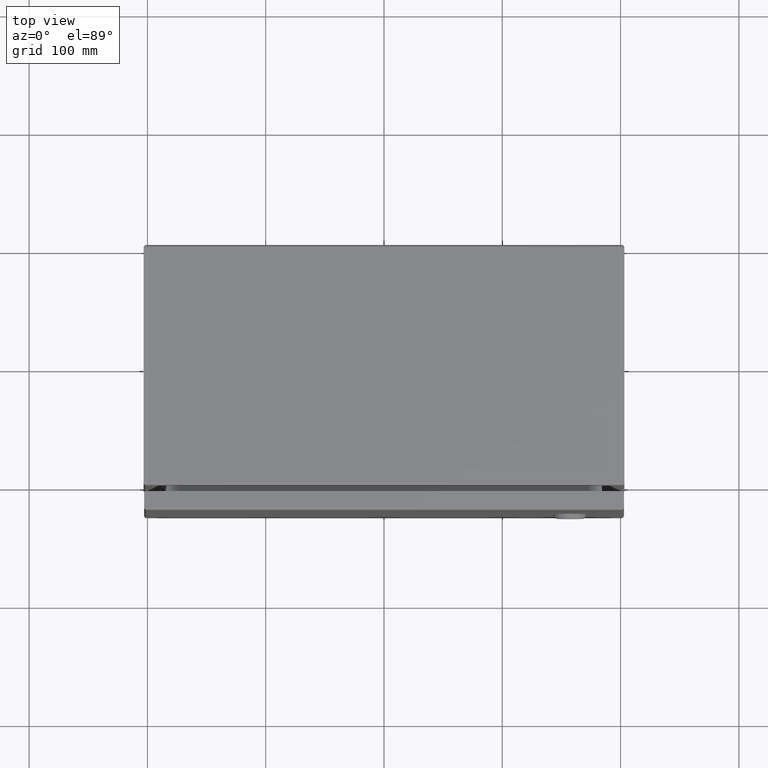
[diagram: clean part render]
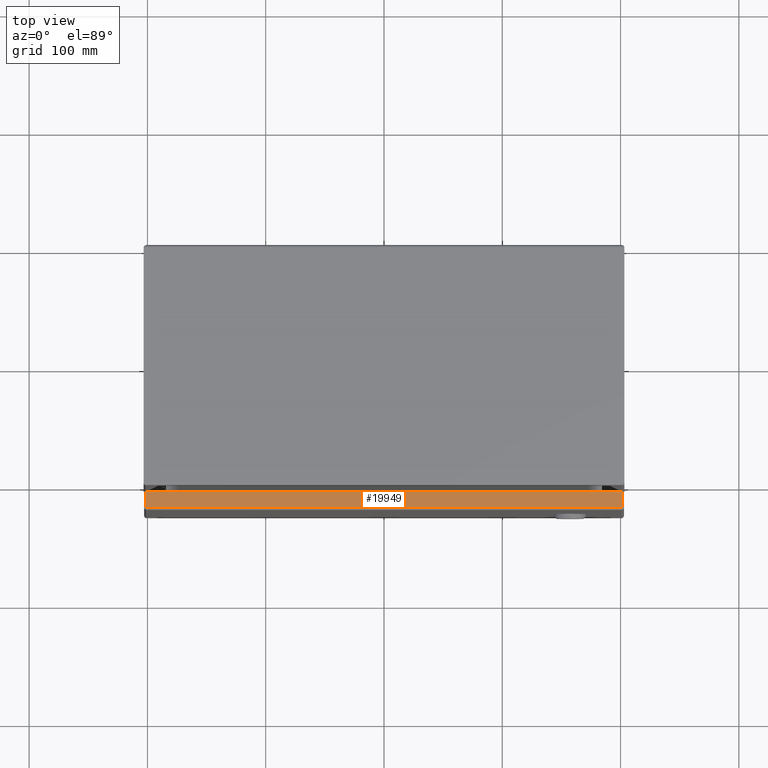
[diagram: same view with one face highlighted and labeled with its STEP entity id]
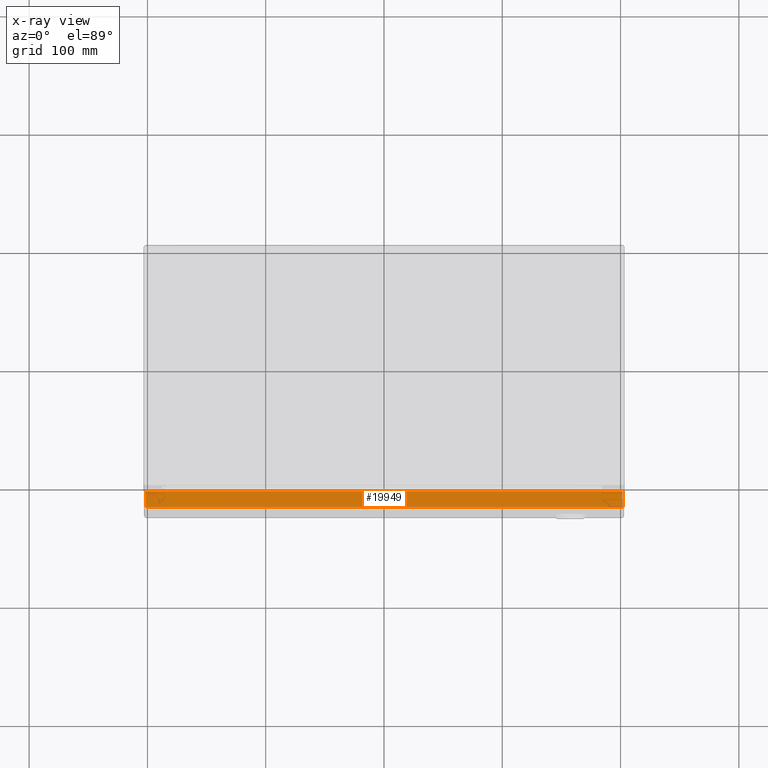
[diagram: x-ray of the same camera — body ghosted, the highlighted face saturated]
A machine part, top view. The second image highlights one B-rep face of the part: STEP entity #19949.
The next image is the same camera in x-ray: the body ghosted, the highlighted face saturated — about 0% of this face is hidden behind the body in this view.
In plain terms, the highlighted planar face has unit normal (0, 0, 1).
Its self-contained STEP definition (entity closure, byte-faithful):
#375 = CARTESIAN_POINT ( 'NONE',  ( 7.929921259842517500, -8.774000000000002686, 7.984499999999999709 ) ) ;
#1297 = LINE ( 'NONE', #14626, #10352 ) ;
#1565 = EDGE_CURVE ( 'NONE', #19984, #11959, #9009, .T. ) ;
#2267 = EDGE_LOOP ( 'NONE', ( #12916, #4973, #13588, #10468 ) ) ;
#2647 = PLANE ( 'NONE',  #10613 ) ;
#2804 = EDGE_CURVE ( 'NONE', #11162, #11959, #19255, .T. ) ;
#3734 = CARTESIAN_POINT ( 'NONE',  ( -7.924921259842525600, -8.196000000000001506, 7.984499999999999709 ) ) ;
#4099 = CARTESIAN_POINT ( 'NONE',  ( 7.929921259842518388, -8.734999999999995879, 7.984500000000001485 ) ) ;
#4973 = ORIENTED_EDGE ( 'NONE', *, *, #17627, .T. ) ;
#5231 = DIRECTION ( 'NONE',  ( 0.0000000000000000000, -1.000000000000000000, -0.0000000000000000000 ) ) ;
#6897 = CARTESIAN_POINT ( 'NONE',  ( -7.896000000000004349, -8.734999999999992326, 7.984500000000001485 ) ) ;
#9009 = LINE ( 'NONE', #6897, #19519 ) ;
#9388 = DIRECTION ( 'NONE',  ( 0.0000000000000000000, -1.000000000000000000, 6.123031769111889989E-17 ) ) ;
#10225 = EDGE_CURVE ( 'NONE', #21909, #11162, #1297, .T. ) ;
#10352 = VECTOR ( 'NONE', #16079, 39.37007874015748143 ) ;
#10468 = ORIENTED_EDGE ( 'NONE', *, *, #2804, .T. ) ;
#10573 = LINE ( 'NONE', #375, #14596 ) ;
#10613 = AXIS2_PLACEMENT_3D ( 'NONE', #21505, #11284, #9388 ) ;
#11162 = VERTEX_POINT ( 'NONE', #3734 ) ;
#11284 = DIRECTION ( 'NONE',  ( 0.0000000000000000000, 6.123031769111889989E-17, 1.000000000000000000 ) ) ;
#11959 = VERTEX_POINT ( 'NONE', #11985 ) ;
#11985 = CARTESIAN_POINT ( 'NONE',  ( -7.924921259842524712, -8.734999999999995879, 7.984499999999999709 ) ) ;
#12916 = ORIENTED_EDGE ( 'NONE', *, *, #1565, .F. ) ;
#13588 = ORIENTED_EDGE ( 'NONE', *, *, #10225, .T. ) ;
#14596 = VECTOR ( 'NONE', #18933, 39.37007874015748143 ) ;
#14626 = CARTESIAN_POINT ( 'NONE',  ( 7.900999999999997137, -8.196000000000001506, 7.984499999999999709 ) ) ;
#15453 = DIRECTION ( 'NONE',  ( -1.000000000000000000, -3.749151804555340178E-33, -6.123031769111889989E-17 ) ) ;
#16079 = DIRECTION ( 'NONE',  ( -1.000000000000000000, -0.0000000000000000000, -0.0000000000000000000 ) ) ;
#16230 = CARTESIAN_POINT ( 'NONE',  ( 7.929921259842517500, -8.196000000000001506, 7.984499999999999709 ) ) ;
#17567 = CARTESIAN_POINT ( 'NONE',  ( -7.924921259842524712, -8.774000000000002686, 7.984499999999999709 ) ) ;
#17627 = EDGE_CURVE ( 'NONE', #19984, #21909, #10573, .T. ) ;
#17856 = FACE_OUTER_BOUND ( 'NONE', #2267, .T. ) ;
#18933 = DIRECTION ( 'NONE',  ( -1.890552244750349893E-15, 1.000000000000000000, -0.0000000000000000000 ) ) ;
#19255 = LINE ( 'NONE', #17567, #19905 ) ;
#19519 = VECTOR ( 'NONE', #15453, 39.37007874015748143 ) ;
#19905 = VECTOR ( 'NONE', #5231, 39.37007874015748143 ) ;
#19949 = ADVANCED_FACE ( 'NONE', ( #17856 ), #2647, .T. ) ;
#19984 = VERTEX_POINT ( 'NONE', #4099 ) ;
#21505 = CARTESIAN_POINT ( 'NONE',  ( -7.896000000000004349, -8.774000000000002686, 7.984499999999999709 ) ) ;
#21909 = VERTEX_POINT ( 'NONE', #16230 ) ;